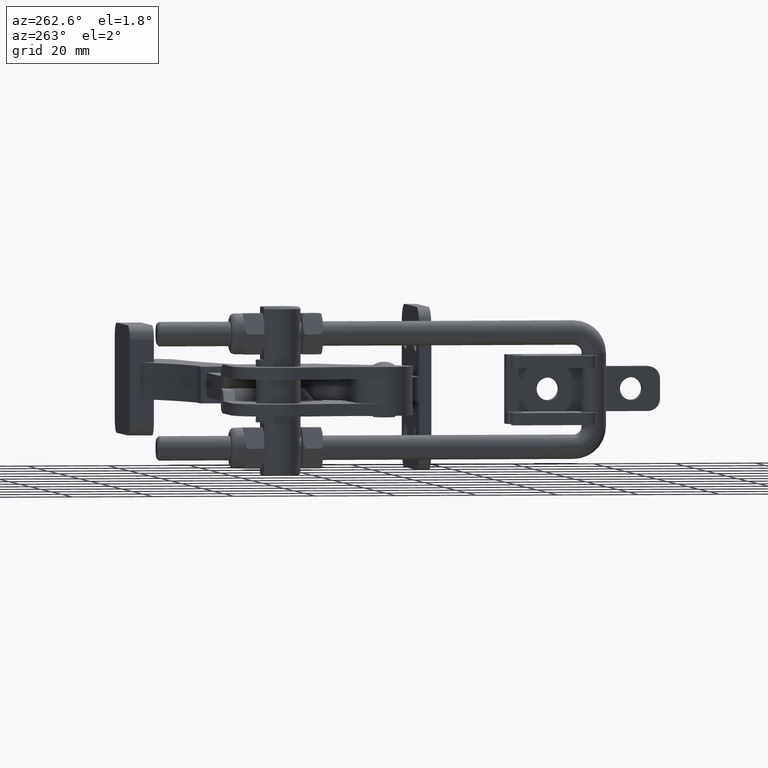
[diagram: clean part render]
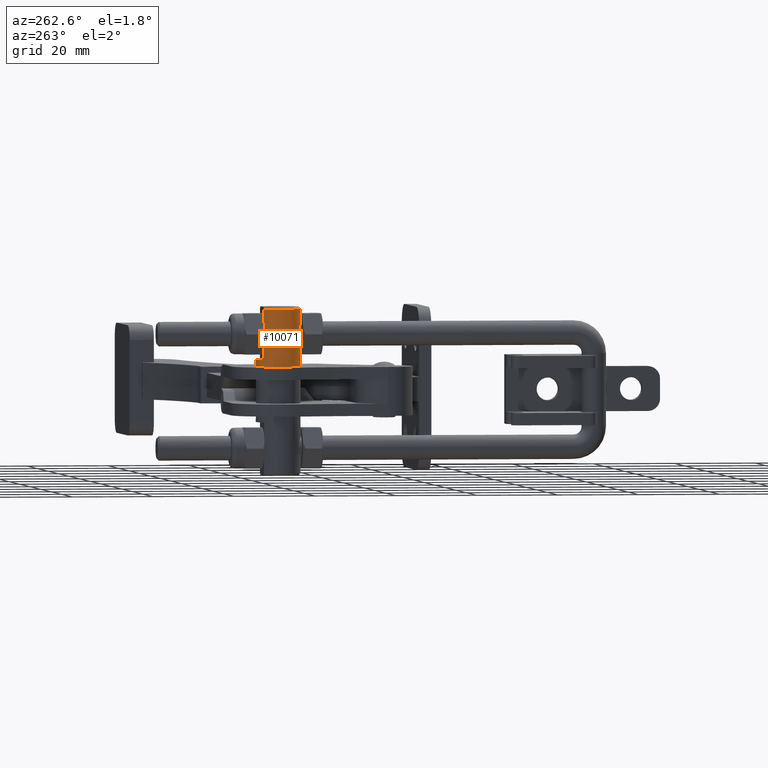
[diagram: same view with one face highlighted and labeled with its STEP entity id]
A machine part, auxiliary view. The second image highlights one B-rep face of the part: STEP entity #10071.
In plain terms, the highlighted cylindrical surface (edge-blend (fillet) strip) has radius 5.5 mm, axis along (0, 0, 1).
Its self-contained STEP definition (entity closure, byte-faithful):
#48 = AXIS2_PLACEMENT_3D ( 'NONE', #6118, #2785, #5364 ) ;
#70 = EDGE_LOOP ( 'NONE', ( #10104, #9467, #6099, #10614, #4275, #9863, #3348, #2913, #4522 ) ) ;
#89 = CARTESIAN_POINT ( 'NONE',  ( -45.91309312494438200, 43.00228994470245400, -20.64999999999999900 ) ) ;
#107 = VERTEX_POINT ( 'NONE', #8952 ) ;
#139 = CARTESIAN_POINT ( 'NONE',  ( -42.13817590730901200, 44.50228994470244700, 5.999999999999998200 ) ) ;
#183 = CIRCLE ( 'NONE', #5350, 5.499999999999998200 ) ;
#334 = CARTESIAN_POINT ( 'NONE',  ( -45.13817590730900500, 34.39251771605600500, 14.00000000000000400 ) ) ;
#571 = VECTOR ( 'NONE', #2135, 1000.000000000000000 ) ;
#795 = CARTESIAN_POINT ( 'NONE',  ( -42.13817590730901200, 33.50228994470245400, 17.00000000000000400 ) ) ;
#883 = DIRECTION ( 'NONE',  ( 0.0000000000000000000, 1.000000000000000000, 0.0000000000000000000 ) ) ;
#937 = CARTESIAN_POINT ( 'NONE',  ( -42.33757463680940000, 33.50228994470245400, 17.00000000000000700 ) ) ;
#1027 = EDGE_CURVE ( 'NONE', #5193, #1398, #5136, .T. ) ;
#1192 = CARTESIAN_POINT ( 'NONE',  ( -44.53156199282706500, 34.04163412440812000, 12.15097215808777900 ) ) ;
#1208 = CARTESIAN_POINT ( 'NONE',  ( -45.11781352368297600, 34.37909490609440900, 13.59862137209239600 ) ) ;
#1228 = EDGE_CURVE ( 'NONE', #4751, #1398, #183, .T. ) ;
#1349 = DIRECTION ( 'NONE',  ( 5.615258368553491600E-018, 9.625066968735705600E-019, 1.000000000000000000 ) ) ;
#1398 = VERTEX_POINT ( 'NONE', #5287 ) ;
#1401 = CARTESIAN_POINT ( 'NONE',  ( -42.33926284067683800, 33.50228994470244700, 10.99999999999998800 ) ) ;
#1472 = EDGE_CURVE ( 'NONE', #5193, #3717, #4862, .T. ) ;
#1568 = AXIS2_PLACEMENT_3D ( 'NONE', #10262, #5435, #7682 ) ;
#1614 = DIRECTION ( 'NONE',  ( 5.615258368553491600E-018, 9.625066968735705600E-019, 1.000000000000000000 ) ) ;
#1844 = CARTESIAN_POINT ( 'NONE',  ( -43.65609144161550900, 33.71321909918490400, 16.59486751899872900 ) ) ;
#1846 = AXIS2_PLACEMENT_3D ( 'NONE', #2521, #8339, #3384 ) ;
#1965 = CARTESIAN_POINT ( 'NONE',  ( -44.12738807570855200, 33.87251088414940600, 16.25386435319029500 ) ) ;
#1968 = CARTESIAN_POINT ( 'NONE',  ( -43.97421778707096300, 33.81504013569698900, 11.61952471740972100 ) ) ;
#2135 = DIRECTION ( 'NONE',  ( 5.615258368553491600E-018, 9.625066968735705600E-019, 1.000000000000000000 ) ) ;
#2492 = CARTESIAN_POINT ( 'NONE',  ( -42.13817590730901200, 33.50228994470244000, 10.99999999999998200 ) ) ;
#2521 = CARTESIAN_POINT ( 'NONE',  ( -42.13817590730901200, 39.00228994470245400, 20.14999999999997700 ) ) ;
#2581 = CARTESIAN_POINT ( 'NONE',  ( -45.13817590730900500, 34.39251771605600500, 14.00000000000000400 ) ) ;
#2714 = FACE_OUTER_BOUND ( 'NONE', #70, .T. ) ;
#2785 = DIRECTION ( 'NONE',  ( 5.615258368553491600E-018, 9.625066968735705600E-019, 1.000000000000000000 ) ) ;
#2794 = CARTESIAN_POINT ( 'NONE',  ( -44.52000278671741300, 34.04330740654635400, 15.83417733575202200 ) ) ;
#2913 = ORIENTED_EDGE ( 'NONE', *, *, #10567, .T. ) ;
#3032 = LINE ( 'NONE', #6312, #571 ) ;
#3348 = ORIENTED_EDGE ( 'NONE', *, *, #8693, .T. ) ;
#3384 = DIRECTION ( 'NONE',  ( 0.0000000000000000000, 1.000000000000000000, 0.0000000000000000000 ) ) ;
#3503 = VERTEX_POINT ( 'NONE', #8616 ) ;
#3607 = DIRECTION ( 'NONE',  ( -5.615258368553490900E-018, -9.625066968735705600E-019, -1.000000000000000000 ) ) ;
#3664 = CARTESIAN_POINT ( 'NONE',  ( -44.82882616211691800, 34.20458592163641500, 15.34091843000848400 ) ) ;
#3717 = VERTEX_POINT ( 'NONE', #8988 ) ;
#3761 = EDGE_CURVE ( 'NONE', #3503, #10385, #8812, .T. ) ;
#4029 = B_SPLINE_CURVE_WITH_KNOTS ( 'NONE', 3,
 ( #6740, #937, #9251, #4285, #10099, #5115, #1844, #6951, #1965, #7801, #2794, #8612, #3664, #9470, #4491, #10303, #5340, #334 ),
 .UNSPECIFIED., .F., .F.,
 ( 4, 2, 2, 2, 2, 2, 2, 2, 4 ),
 ( 0.01435772408560845500, 0.01495433762511049400, 0.01555095116461253600, 0.01614756470411457500, 0.01674417824361661500, 0.01734079178311865400, 0.01793740532262069800, 0.01853401886212273700, 0.01913063240162477700 ),
 .UNSPECIFIED. ) ;
#4078 = CIRCLE ( 'NONE', #1846, 5.499999999999998200 ) ;
#4133 = VERTEX_POINT ( 'NONE', #795 ) ;
#4162 = LINE ( 'NONE', #89, #10023 ) ;
#4275 = ORIENTED_EDGE ( 'NONE', *, *, #7607, .F. ) ;
#4285 = CARTESIAN_POINT ( 'NONE',  ( -42.93062434355507400, 33.55614408728590100, 16.90027947457228700 ) ) ;
#4438 = CARTESIAN_POINT ( 'NONE',  ( -44.75209842952476400, 34.15995735730732000, 12.47667564887564000 ) ) ;
#4491 = CARTESIAN_POINT ( 'NONE',  ( -45.03749146286278900, 34.32829671301969700, 14.79624793370089400 ) ) ;
#4522 = ORIENTED_EDGE ( 'NONE', *, *, #1228, .T. ) ;
#4751 = VERTEX_POINT ( 'NONE', #9595 ) ;
#4862 = CIRCLE ( 'NONE', #1568, 5.499999999999998200 ) ;
#4958 = CARTESIAN_POINT ( 'NONE',  ( -43.65199404644517500, 33.71201915703105100, 11.40268080573731900 ) ) ;
#5001 = VERTEX_POINT ( 'NONE', #5549 ) ;
#5115 = CARTESIAN_POINT ( 'NONE',  ( -43.48476130323518900, 33.66640643028409100, 16.68812246404069900 ) ) ;
#5136 = LINE ( 'NONE', #7495, #7856 ) ;
#5146 = LINE ( 'NONE', #9913, #7347 ) ;
#5193 = VERTEX_POINT ( 'NONE', #139 ) ;
#5276 = CARTESIAN_POINT ( 'NONE',  ( -42.92737026652290700, 33.55567025087392400, 11.09883298945279500 ) ) ;
#5287 = CARTESIAN_POINT ( 'NONE',  ( -42.13817590730901200, 44.50228994470244700, 7.650000000000002100 ) ) ;
#5340 = CARTESIAN_POINT ( 'NONE',  ( -45.13817590730901900, 34.39251771605601200, 14.20215840282332400 ) ) ;
#5350 = AXIS2_PLACEMENT_3D ( 'NONE', #6234, #3607, #883 ) ;
#5364 = DIRECTION ( 'NONE',  ( 0.0000000000000000000, -1.000000000000000000, 0.0000000000000000000 ) ) ;
#5435 = DIRECTION ( 'NONE',  ( -3.921066683671212800E-017, -2.255775528422235900E-018, 1.000000000000000000 ) ) ;
#5549 = CARTESIAN_POINT ( 'NONE',  ( -45.91309312494439600, 43.00228994470244700, 20.14999999999997700 ) ) ;
#5704 = CARTESIAN_POINT ( 'NONE',  ( -44.12479075794474400, 33.87150421387364200, 11.74386133762504300 ) ) ;
#5932 = DIRECTION ( 'NONE',  ( -5.615258368553491600E-018, -9.625066968735705600E-019, -1.000000000000000000 ) ) ;
#6099 = ORIENTED_EDGE ( 'NONE', *, *, #7484, .T. ) ;
#6118 = CARTESIAN_POINT ( 'NONE',  ( -42.13817590730901200, 39.00228994470245400, -20.64999999999999900 ) ) ;
#6124 = CYLINDRICAL_SURFACE ( 'NONE', #48, 5.499999999999998200 ) ;
#6234 = CARTESIAN_POINT ( 'NONE',  ( -42.13817590730901200, 39.00228994470245400, 7.650000000000002100 ) ) ;
#6312 = CARTESIAN_POINT ( 'NONE',  ( -42.13817590730901200, 33.50228994470245400, -20.64999999999999900 ) ) ;
#6740 = CARTESIAN_POINT ( 'NONE',  ( -42.13817590730901200, 33.50228994470245400, 17.00000000000000400 ) ) ;
#6895 = CARTESIAN_POINT ( 'NONE',  ( -42.53726968457579700, 33.51328111042619200, 11.02001310126212300 ) ) ;
#6951 = CARTESIAN_POINT ( 'NONE',  ( -43.97671305307962800, 33.81595027767191700, 16.37848400752775300 ) ) ;
#7347 = VECTOR ( 'NONE', #1614, 1000.000000000000000 ) ;
#7364 = CARTESIAN_POINT ( 'NONE',  ( -42.13817590730901200, 33.50228994470244000, 10.99999999999998200 ) ) ;
#7484 = EDGE_CURVE ( 'NONE', #3717, #10385, #5146, .T. ) ;
#7495 = CARTESIAN_POINT ( 'NONE',  ( -42.13817590730901200, 44.50228994470244700, -20.64999999999999900 ) ) ;
#7607 = EDGE_CURVE ( 'NONE', #4133, #3503, #4029, .T. ) ;
#7682 = DIRECTION ( 'NONE',  ( 1.000000000000000000, 0.0000000000000000000, 0.0000000000000000000 ) ) ;
#7747 = EDGE_CURVE ( 'NONE', #4133, #107, #3032, .T. ) ;
#7801 = CARTESIAN_POINT ( 'NONE',  ( -44.39849580594994900, 33.98606106068957900, 15.98187374201752900 ) ) ;
#7856 = VECTOR ( 'NONE', #1349, 1000.000000000000000 ) ;
#7968 = CARTESIAN_POINT ( 'NONE',  ( -45.03902864015062600, 34.32925815449537100, 13.20981106675873900 ) ) ;
#8051 = CARTESIAN_POINT ( 'NONE',  ( -43.48150904147306800, 33.66566590013022200, 11.31042910095393400 ) ) ;
#8339 = DIRECTION ( 'NONE',  ( -5.615258368553490900E-018, -9.625066968735705600E-019, -1.000000000000000000 ) ) ;
#8612 = CARTESIAN_POINT ( 'NONE',  ( -44.73554089644515800, 34.15272272582412700, 15.51360526415197300 ) ) ;
#8616 = CARTESIAN_POINT ( 'NONE',  ( -45.13817590730900500, 34.39251771605600500, 14.00000000000000400 ) ) ;
#8693 = EDGE_CURVE ( 'NONE', #107, #5001, #4078, .T. ) ;
#8812 = B_SPLINE_CURVE_WITH_KNOTS ( 'NONE', 3,
 ( #2581, #9668, #1208, #7968, #10602, #4438, #1192, #5704, #1968, #4958, #8051, #9735, #5276, #6895, #1401, #7364 ),
 .UNSPECIFIED., .F., .F.,
 ( 4, 2, 2, 2, 2, 2, 2, 4 ),
 ( 1.734723475976807100E-018, 0.0005988468315702763900, 0.001197693663140551000, 0.002395387326281087300, 0.002994234157851351000, 0.003593080989421613900, 0.004191927820991876700, 0.004790774652562139100 ),
 .UNSPECIFIED. ) ;
#8952 = CARTESIAN_POINT ( 'NONE',  ( -42.13817590730901200, 33.50228994470245400, 20.14999999999997700 ) ) ;
#8988 = CARTESIAN_POINT ( 'NONE',  ( -42.13817590730901200, 33.50228994470245400, 5.999999999999998200 ) ) ;
#9251 = CARTESIAN_POINT ( 'NONE',  ( -42.54062343569725600, 33.51352731444976700, 16.97953545735378000 ) ) ;
#9467 = ORIENTED_EDGE ( 'NONE', *, *, #1472, .T. ) ;
#9470 = CARTESIAN_POINT ( 'NONE',  ( -44.97916181363559200, 34.29204984820039200, 14.98308703057665200 ) ) ;
#9595 = CARTESIAN_POINT ( 'NONE',  ( -45.91309312494438200, 43.00228994470244700, 7.650000000000001200 ) ) ;
#9668 = CARTESIAN_POINT ( 'NONE',  ( -45.13817590730902700, 34.39251771605602700, 13.79708486148824200 ) ) ;
#9735 = CARTESIAN_POINT ( 'NONE',  ( -43.12053375798737400, 33.58758098154847700, 11.15864317912215700 ) ) ;
#9863 = ORIENTED_EDGE ( 'NONE', *, *, #7747, .T. ) ;
#9913 = CARTESIAN_POINT ( 'NONE',  ( -42.13817590730901200, 33.50228994470245400, -20.64999999999999900 ) ) ;
#10023 = VECTOR ( 'NONE', #5932, 1000.000000000000000 ) ;
#10071 = ADVANCED_FACE ( 'NONE', ( #2714 ), #6124, .T. ) ;
#10099 = CARTESIAN_POINT ( 'NONE',  ( -43.11935613936135100, 33.58728944052952400, 16.84193243452964900 ) ) ;
#10104 = ORIENTED_EDGE ( 'NONE', *, *, #1027, .F. ) ;
#10262 = CARTESIAN_POINT ( 'NONE',  ( -42.13817590730901200, 39.00228994470245400, 5.999999999999998200 ) ) ;
#10303 = CARTESIAN_POINT ( 'NONE',  ( -45.11755823490604200, 34.37892273383818100, 14.40413167235639400 ) ) ;
#10385 = VERTEX_POINT ( 'NONE', #2492 ) ;
#10567 = EDGE_CURVE ( 'NONE', #5001, #4751, #4162, .T. ) ;
#10602 = CARTESIAN_POINT ( 'NONE',  ( -44.97955775728097200, 34.29227474914056700, 13.01774433553744900 ) ) ;
#10614 = ORIENTED_EDGE ( 'NONE', *, *, #3761, .F. ) ;